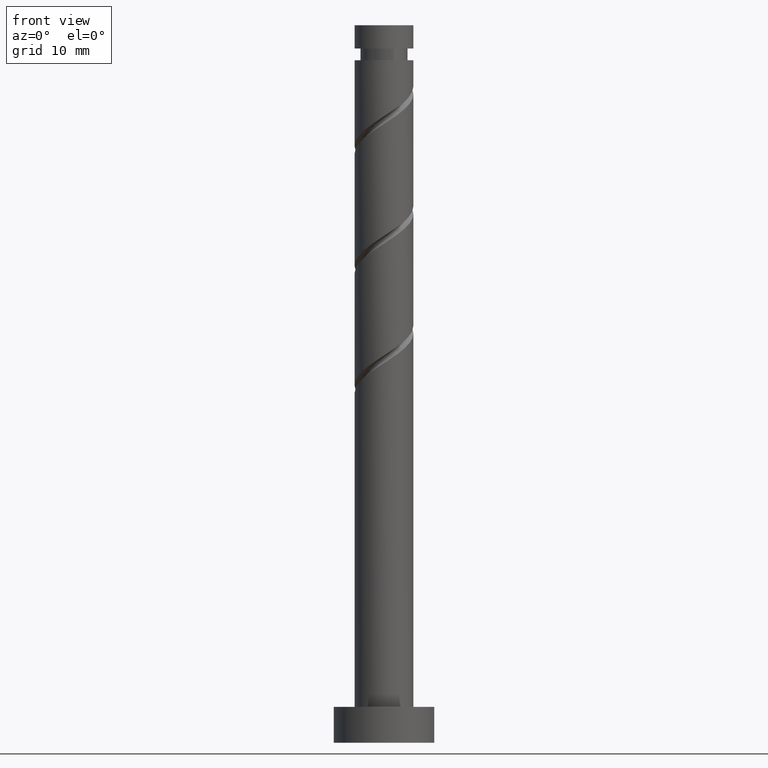
[diagram: clean part render]
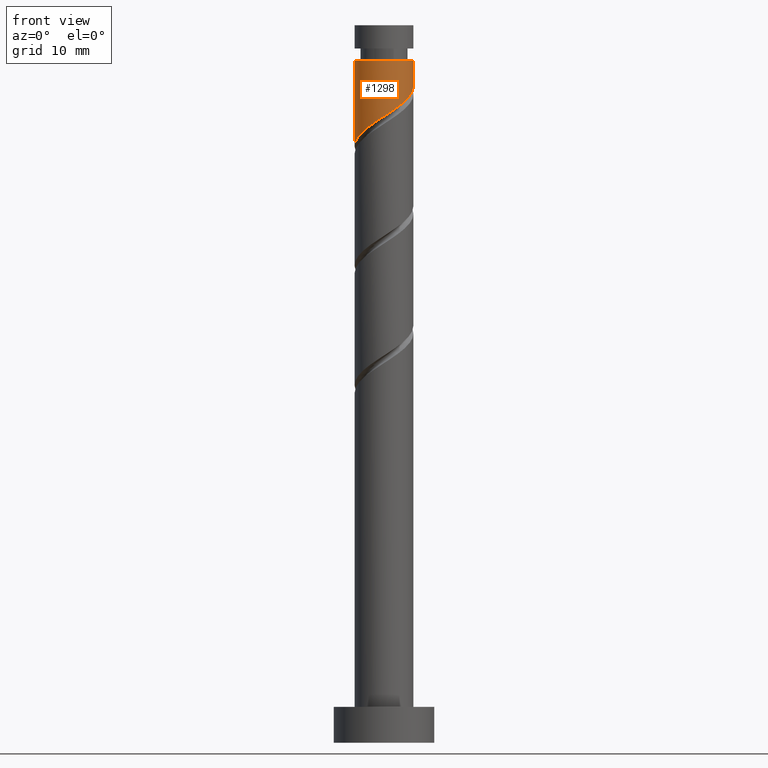
[diagram: same view with one face highlighted and labeled with its STEP entity id]
A machine part, front view. The second image highlights one B-rep face of the part: STEP entity #1298.
In plain terms, the highlighted cylindrical surface (edge-blend (fillet) strip) has radius 4.1 mm, axis along (-0, -0, -1).
Its self-contained STEP definition (entity closure, byte-faithful):
#84 = EDGE_CURVE ( 'NONE', #105, #1001, #411, .T. ) ;
#105 = VERTEX_POINT ( 'NONE', #297 ) ;
#110 = EDGE_CURVE ( 'NONE', #1178, #1473, #649, .T. ) ;
#115 = CARTESIAN_POINT ( 'NONE',  ( 2.592914988353427486, -3.257212766235300982, 89.09933063822529675 ) ) ;
#179 = CARTESIAN_POINT ( 'NONE',  ( 4.099999999999999645, 5.021051876504147385E-16, 100.0000000000000000 ) ) ;
#185 = CARTESIAN_POINT ( 'NONE',  ( 1.957712846042163557, -3.602410361472089484, 88.63636767526229221 ) ) ;
#187 =( BOUNDED_CURVE ( )  B_SPLINE_CURVE ( 2, ( #1396, #1280, #729, #1043, #604, #1255, #1166, #115, #185, #347, #1434, #699, #488, #925, #1371, #346, #335, #1386, #219, #934, #1135 ),
 .UNSPECIFIED., .F., .T. ) 
 B_SPLINE_CURVE_WITH_KNOTS ( ( 3, 2, 2, 2, 2, 2, 2, 2, 2, 2, 3 ),
 ( 0.3045248053855292292, 0.3055555555555555802, 0.3194444444444444198, 0.3333333333333333148, 0.3472222222222222099, 0.3611111111111111049, 0.3750000000000000000, 0.3888888888888888951, 0.4027777777777777901, 0.4166666666666666852, 0.4295248053855290071 ),
 .UNSPECIFIED. ) 
 CURVE ( )  GEOMETRIC_REPRESENTATION_ITEM ( )  RATIONAL_B_SPLINE_CURVE ( ( 0.9071930855141200345, 0.9080659294509676460, 0.9090909090909075063, 0.8952797754656419693, 0.9090909090909075063, 0.8952797754656419693, 0.9090909090909075063, 0.8952797754656419693, 0.9090909090909075063, 0.8952797754656419693, 0.9090909090909075063, 0.8952797754656419693, 0.9090909090909075063, 0.8952797754656419693, 0.9090909090909075063, 0.8952797754656419693, 0.9090909090909075063, 0.8952797754656419693, 0.9090909090909075063, 0.8963047551055820517, 0.9071930855141197014 ) ) 
 REPRESENTATION_ITEM ( '' )  );
#193 = AXIS2_PLACEMENT_3D ( 'NONE', #880, #1321, #454 ) ;
#219 = CARTESIAN_POINT ( 'NONE',  ( -3.887634921619586237, -1.302418794475820985, 84.00673804563265890 ) ) ;
#297 = CARTESIAN_POINT ( 'NONE',  ( 4.100000000000000533, 5.021051876504148371E-16, 95.11784915674378738 ) ) ;
#334 = VECTOR ( 'NONE', #768, 1000.000000000000000 ) ;
#335 = CARTESIAN_POINT ( 'NONE',  ( -3.207728385398863846, -2.553522783432013998, 84.93266397155859693 ) ) ;
#346 = CARTESIAN_POINT ( 'NONE',  ( -2.757473422826021370, -3.119131844562236910, 85.39562693452158726 ) ) ;
#347 = CARTESIAN_POINT ( 'NONE',  ( 1.322510703730899628, -3.947607956708881982, 88.17340471229935872 ) ) ;
#372 = DIRECTION ( 'NONE',  ( -1.000000000000000000, 0.000000000000000000, 0.000000000000000000 ) ) ;
#411 = LINE ( 'NONE', #179, #702 ) ;
#416 = CYLINDRICAL_SURFACE ( 'NONE', #193, 4.099999999999999645 ) ;
#454 = DIRECTION ( 'NONE',  ( -1.000000000000000000, 0.000000000000000000, 0.000000000000000000 ) ) ;
#488 = CARTESIAN_POINT ( 'NONE',  ( -0.8158896984274283115, -4.017999999999998018, 86.78451582341047299 ) ) ;
#493 = CARTESIAN_POINT ( 'NONE',  ( 0.000000000000000000, 0.000000000000000000, 95.11784915674378738 ) ) ;
#577 = ORIENTED_EDGE ( 'NONE', *, *, #678, .F. ) ;
#604 = CARTESIAN_POINT ( 'NONE',  ( 3.815279792293906347, -1.501212878479849078, 90.48821952711413985 ) ) ;
#649 = LINE ( 'NONE', #1104, #334 ) ;
#678 = EDGE_CURVE ( 'NONE', #1001, #1473, #187, .T. ) ;
#699 = CARTESIAN_POINT ( 'NONE',  ( -0.1074078899408172638, -4.161863367114849055, 87.24747878637343490 ) ) ;
#702 = VECTOR ( 'NONE', #875, 1000.000000000000000 ) ;
#729 = CARTESIAN_POINT ( 'NONE',  ( 4.098635310912194463, -0.1057761227483988986, 91.41414545304006367 ) ) ;
#768 = DIRECTION ( 'NONE',  ( -0.000000000000000000, -0.000000000000000000, -1.000000000000000000 ) ) ;
#794 = ORIENTED_EDGE ( 'NONE', *, *, #110, .T. ) ;
#820 = CARTESIAN_POINT ( 'NONE',  ( 4.099999999999998757, 1.112953007743588534E-15, 91.48203737839918404 ) ) ;
#863 = ORIENTED_EDGE ( 'NONE', *, *, #873, .T. ) ;
#873 = EDGE_CURVE ( 'NONE', #105, #1178, #1315, .T. ) ;
#875 = DIRECTION ( 'NONE',  ( -0.000000000000000000, -0.000000000000000000, -1.000000000000000000 ) ) ;
#880 = CARTESIAN_POINT ( 'NONE',  ( 0.000000000000000000, 0.000000000000000000, 100.0000000000000000 ) ) ;
#925 = CARTESIAN_POINT ( 'NONE',  ( -1.524371506914041774, -3.874136632885150977, 86.32155286044746845 ) ) ;
#934 = CARTESIAN_POINT ( 'NONE',  ( -4.099999999999999645, -0.6685229244638752899, 83.57862355743152705 ) ) ;
#936 = ORIENTED_EDGE ( 'NONE', *, *, #84, .F. ) ;
#996 = AXIS2_PLACEMENT_3D ( 'NONE', #493, #1392, #372 ) ;
#1001 = VERTEX_POINT ( 'NONE', #820 ) ;
#1043 = CARTESIAN_POINT ( 'NONE',  ( 4.079984126556922774, -0.8284761121466460709, 90.95118249007714439 ) ) ;
#1104 = CARTESIAN_POINT ( 'NONE',  ( -4.099999999999999645, 0.000000000000000000, 100.0000000000000000 ) ) ;
#1135 = CARTESIAN_POINT ( 'NONE',  ( -4.099999999999998757, -2.763708811175354149E-15, 83.14870404506589807 ) ) ;
#1166 = CARTESIAN_POINT ( 'NONE',  ( 3.071745223192158036, -2.715581205524178365, 89.56229360118824445 ) ) ;
#1178 = VERTEX_POINT ( 'NONE', #1422 ) ;
#1255 = CARTESIAN_POINT ( 'NONE',  ( 3.550575458030890807, -2.173949644813055748, 90.02525656415122057 ) ) ;
#1280 = CARTESIAN_POINT ( 'NONE',  ( 4.099999999999997868, -0.05289686476129509818, 91.44802000446685497 ) ) ;
#1298 = ADVANCED_FACE ( 'NONE', ( #1435 ), #416, .T. ) ;
#1315 = CIRCLE ( 'NONE', #996, 4.100000000000000533 ) ;
#1321 = DIRECTION ( 'NONE',  ( -0.000000000000000000, -0.000000000000000000, -1.000000000000000000 ) ) ;
#1358 = EDGE_LOOP ( 'NONE', ( #936, #863, #794, #577 ) ) ;
#1371 = CARTESIAN_POINT ( 'NONE',  ( -2.140922464870030240, -3.496634238723693056, 85.85858989748453496 ) ) ;
#1381 = CARTESIAN_POINT ( 'NONE',  ( -4.099999999999998757, -2.763708811175354149E-15, 83.14870404506589807 ) ) ;
#1386 = CARTESIAN_POINT ( 'NONE',  ( -3.657983347971706323, -1.987913722301794861, 84.46970100859567765 ) ) ;
#1392 = DIRECTION ( 'NONE',  ( -0.000000000000000000, -0.000000000000000000, -1.000000000000000000 ) ) ;
#1396 = CARTESIAN_POINT ( 'NONE',  ( 4.099999999999998757, 1.112953007743588534E-15, 91.48203737839918404 ) ) ;
#1422 = CARTESIAN_POINT ( 'NONE',  ( -4.100000000000000533, 0.000000000000000000, 95.11784915674378738 ) ) ;
#1434 = CARTESIAN_POINT ( 'NONE',  ( 0.6075514068950419455, -4.054735661911863964, 87.71044174933638260 ) ) ;
#1435 = FACE_OUTER_BOUND ( 'NONE', #1358, .T. ) ;
#1473 = VERTEX_POINT ( 'NONE', #1381 ) ;